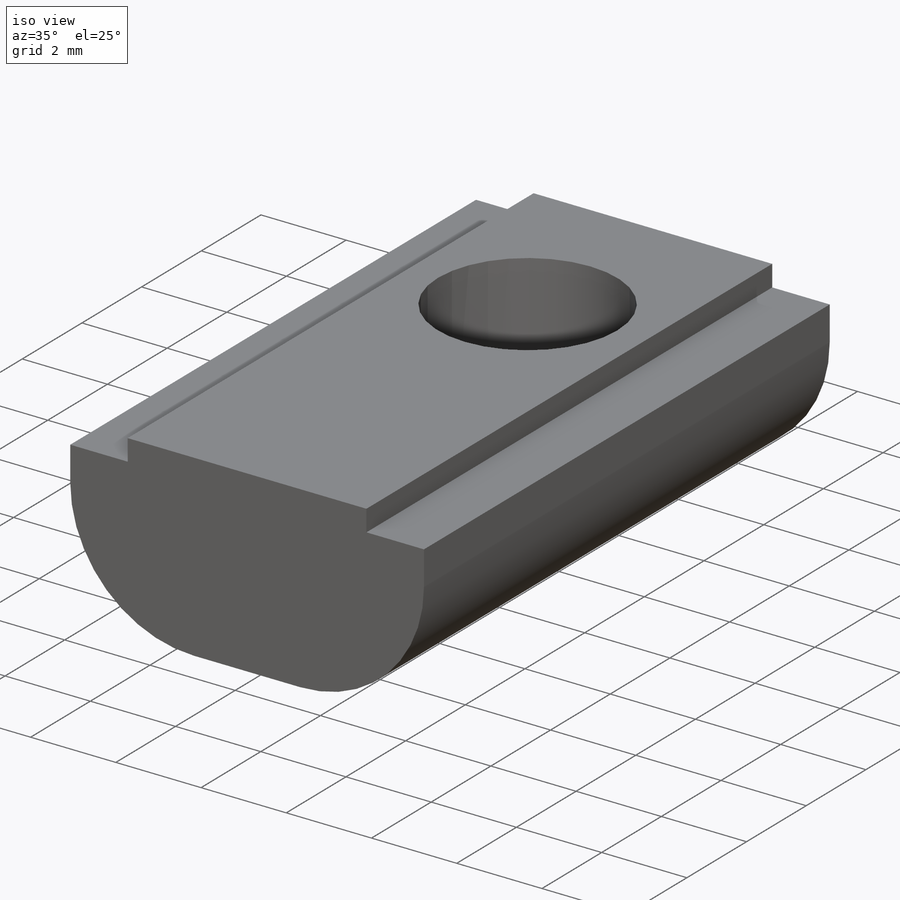
[diagram: iso view]
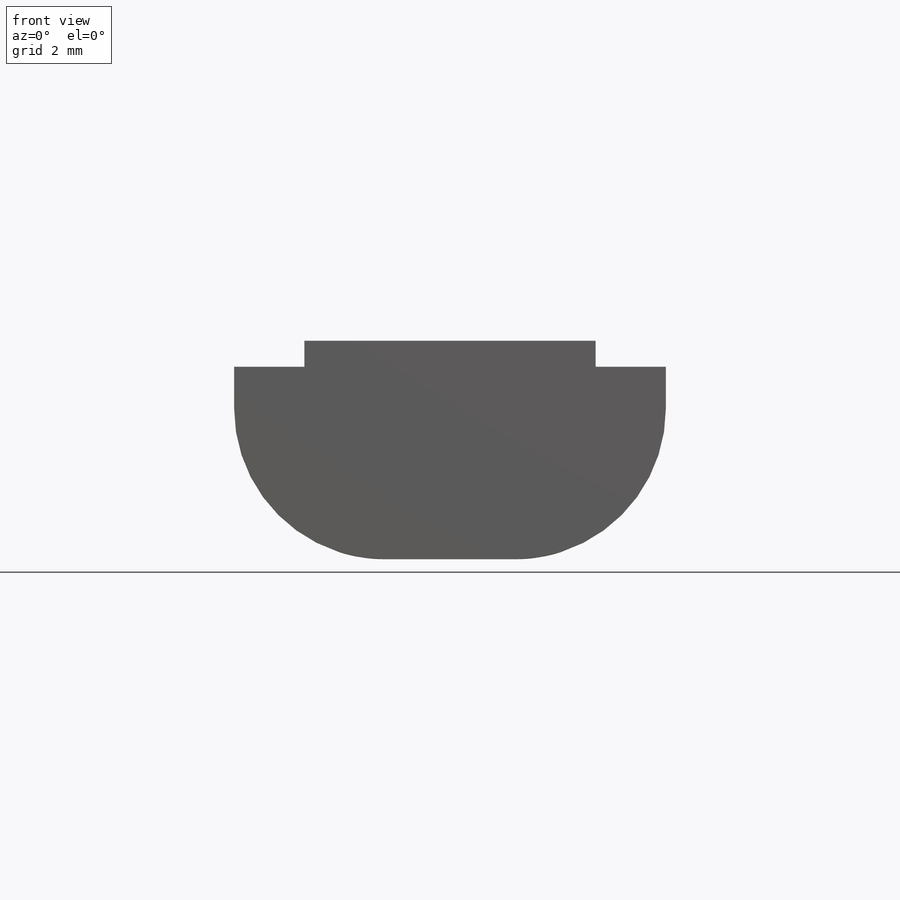
[diagram: front view]
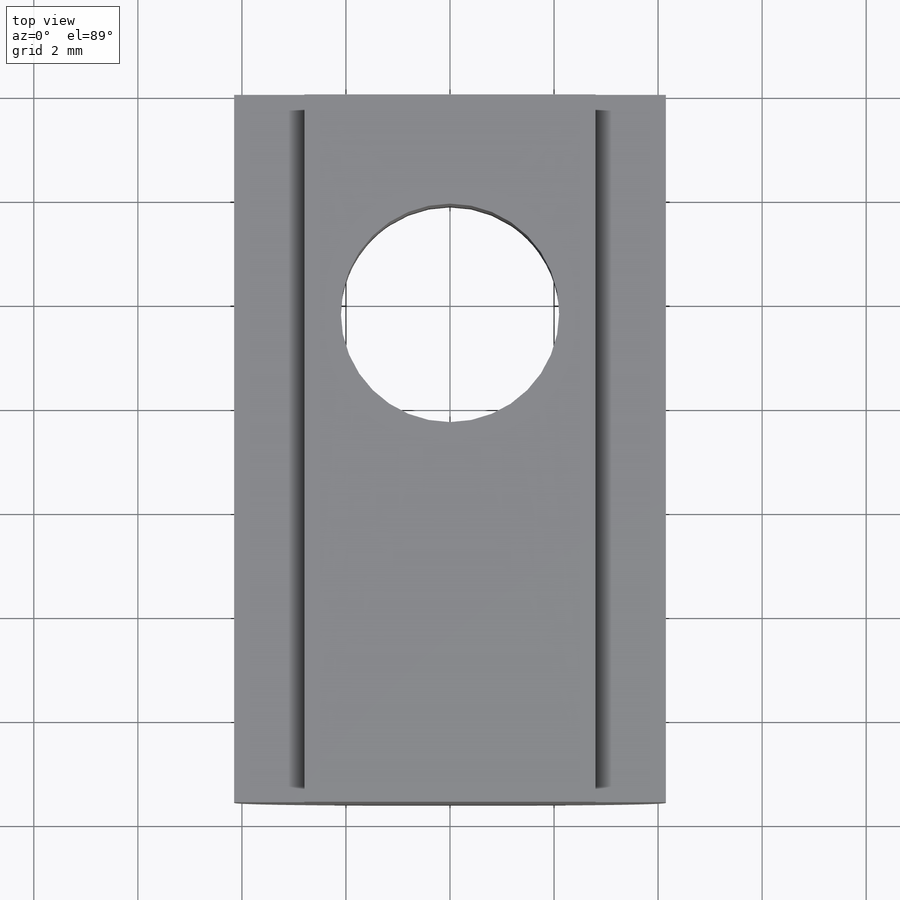
[diagram: top view]
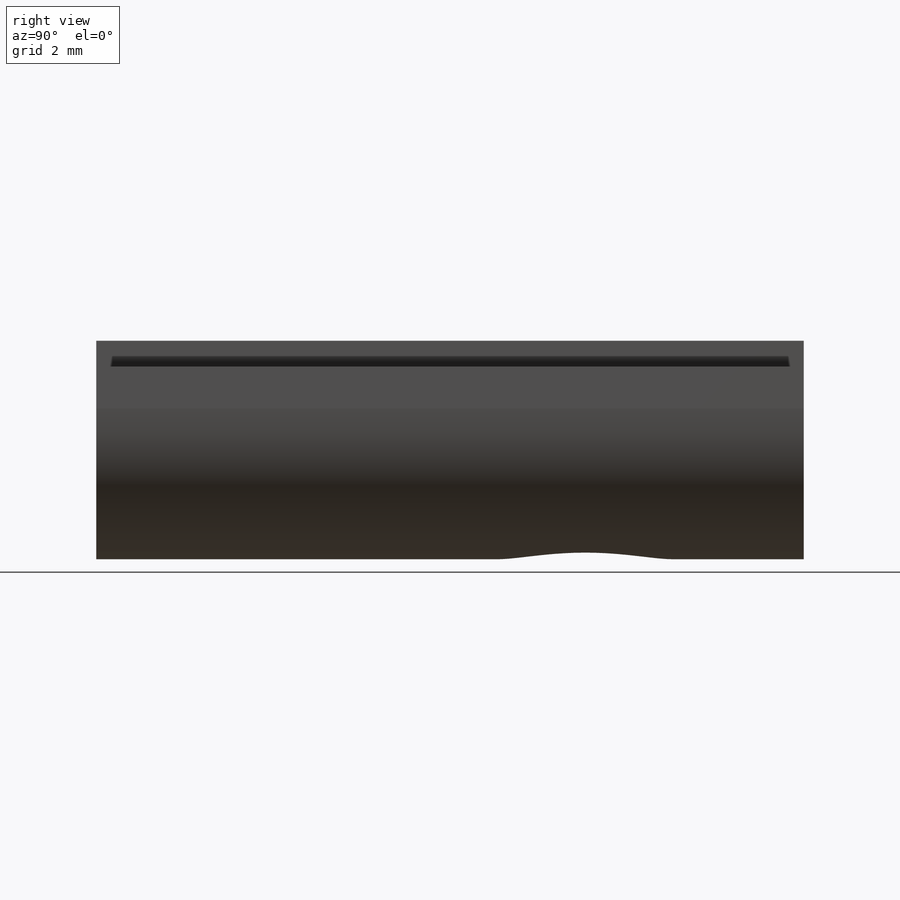
[diagram: right view]
SOLIDWORKS PART (.sldprt)
format: sldprt  version: not decoded by parser v0  size: 184,320 bytes
history: native  units: mm
features: sketch x3, material x1, extrude x1, hole x1 (+13 scaffold rows collapsed)
feature tree (19):
  scaffold x13  (default folders/planes/origin — collapsed)
  material  "Plain Carbon Steel"
  sketch  "Sketch1"  dims[c1.D1=5.6mm c1.D2=4.2mm c1.D3=0.5mm c1.D4=2.0mm c1.D5=8.3mm c2.D2=4.2mm c2.D4=2.5mm]
  extrude  "Boss-Extrude1"  Depth=13.6mm
  hole  "M5x0.8 Tapped Hole1"  Diameter=4.2mm Depth=4.2mm
  sketch  "Sketch3"  dims[D1=4.2mm]
  sketch  "Sketch2"  dims[hole-wizard template sketch: 60 standard entries collapsed; hole parameters kept: c18.Thru Tap Drill Depth=4.2mm]
decode coverage: 5 of 5 modeling features carry decoded parameters
note: ~ marks probable driven/reference dimensions
note: suppression state not decoded; provenance and decode notes live in map.json
